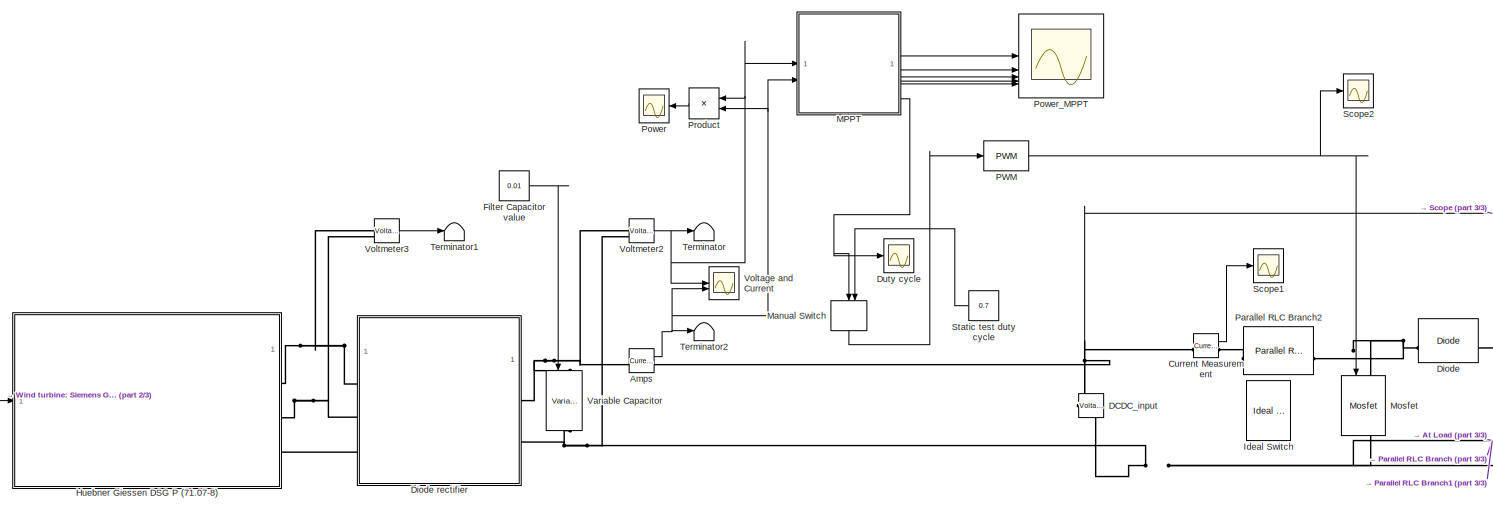
[diagram: root canvas - part 1/3, center side, full height]
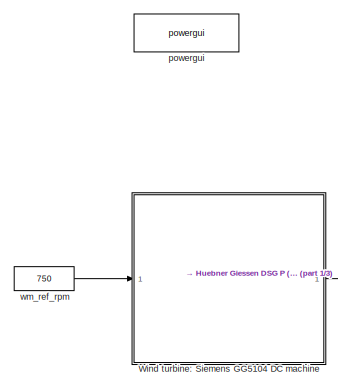
[diagram: root canvas - part 2/3, middle left region]
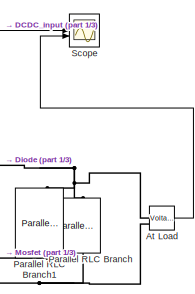
[diagram: root canvas - part 3/3, middle right region]
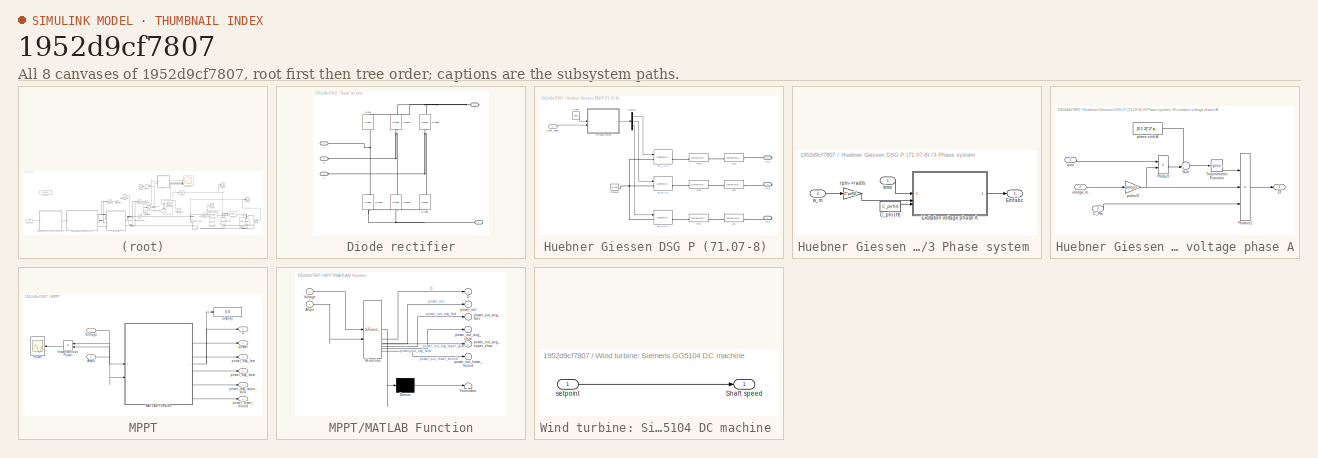
[diagram: thumbnail index - all 8 canvases of the model, root first then tree order]
MODEL slx_1952d9cf7807
KIND model
CONFIG AbsTol = auto
CONFIG EnableMultiTasking = off
CONFIG FixedStep = 1e-7
CONFIG MaxStep = 1e-6
CONFIG MinStep = auto
CONFIG RelTol = 1e-6
CONFIG SampleTimeConstraint = Unconstrained
CONFIG SolverName = ode45
CONFIG StartTime = 0.0
CONFIG StopTime = 10
WORKSPACE source: mxarray member
WORKSPACE C = 0.00044
WORKSPACE L = 0.00025
WORKSPACE R_load = 10
WORKSPACE Rs = 0.42
BLOCK [Reference] Amps  REF=spsCurrentMeasurementLib/Current Measurement
  LibrarySourceBlock = sps_lib/Sensors and Measurements/Current Measurement
  SourceBlock = spsCurrentMeasurementLib/Current Measurement
  SourceType = Current Measurement
  UserDataPersistent = on
BLOCK [Reference] At Load  REF=spsVoltageMeasurementLib/Voltage Measurement
  LibrarySourceBlock = sps_lib/Sensors and Measurements/Voltage Measurement
  SourceBlock = spsVoltageMeasurementLib/Voltage Measurement
  SourceType = Voltage Measurement
  UserDataPersistent = on
BLOCK [Reference] Current Measurement  REF=spsCurrentMeasurementLib/Current Measurement
  LibrarySourceBlock = sps_lib/Sensors and Measurements/Current Measurement
  SourceBlock = spsCurrentMeasurementLib/Current Measurement
  SourceType = Current Measurement
  UserDataPersistent = on
BLOCK [Reference] DCDC_input  REF=spsVoltageMeasurementLib/Voltage Measurement
  LibrarySourceBlock = sps_lib/Sensors and Measurements/Voltage Measurement
  NameLocation = top
  SourceBlock = spsVoltageMeasurementLib/Voltage Measurement
  SourceType = Voltage Measurement
  UserDataPersistent = on
BLOCK [Reference] Diode  REF=spsDiodeLib/Diode
  LibrarySourceBlock = sps_lib/Power Electronics/Diode
  SourceBlock = spsDiodeLib/Diode
  SourceType = Diode
BLOCK [SubSystem] Diode rectifier
BLOCK [PMIOPort] Diode rectifier/+
  NameLocation = top
  Port = 2
  Side = Right
BLOCK [PMIOPort] Diode rectifier/-
  NameLocation = top
  Port = 4
  Side = Right
BLOCK [PMIOPort] Diode rectifier/A
  Side = Left
BLOCK [PMIOPort] Diode rectifier/B
  Port = 3
  Side = Left
BLOCK [PMIOPort] Diode rectifier/C
  Port = 5
  Side = Left
BLOCK [Reference] Diode rectifier/Diode  REF=spsDiodeLib/Diode
  LibrarySourceBlock = sps_lib/Power Electronics/Diode
  NameLocation = right
  SourceBlock = spsDiodeLib/Diode
  SourceType = Diode
BLOCK [Reference] Diode rectifier/Diode1  REF=spsDiodeLib/Diode
  LibrarySourceBlock = sps_lib/Power Electronics/Diode
  NameLocation = right
  SourceBlock = spsDiodeLib/Diode
  SourceType = Diode
BLOCK [Reference] Diode rectifier/Diode2  REF=spsDiodeLib/Diode
  LibrarySourceBlock = sps_lib/Power Electronics/Diode
  NameLocation = right
  SourceBlock = spsDiodeLib/Diode
  SourceType = Diode
BLOCK [Reference] Diode rectifier/Diode3  REF=spsDiodeLib/Diode
  LibrarySourceBlock = sps_lib/Power Electronics/Diode
  NameLocation = right
  SourceBlock = spsDiodeLib/Diode
  SourceType = Diode
BLOCK [Reference] Diode rectifier/Diode4  REF=spsDiodeLib/Diode
  LibrarySourceBlock = sps_lib/Power Electronics/Diode
  NameLocation = right
  SourceBlock = spsDiodeLib/Diode
  SourceType = Diode
BLOCK [Reference] Diode rectifier/Diode5  REF=spsDiodeLib/Diode
  LibrarySourceBlock = sps_lib/Power Electronics/Diode
  NameLocation = right
  SourceBlock = spsDiodeLib/Diode
  SourceType = Diode
BLOCK [Scope] Duty cycle
  Floating = off
  NumInputPorts = 1
  ScopeSpecificationString = Simulink.scopes.TimeScopeBlockCfg('CurrentConfiguration', extmgr.ConfigurationSet(extmgr.Configuration('Core','General UI',true),extmgr.Configuration('Core','Source UI',true),extmgr.Configuration('Sources','WiredSimulink',true,'DataLoggingVariableName','ScopeData1'),extmgr.Configuration('Visuals','Time Domain',true,'SerializedDisplays',{struct('MinYLimReal','0','MaxYLimReal','1','YLabelReal','','M...<+1410ch>
BLOCK [Constant] Filter Capacitor value
  Value = 0.01
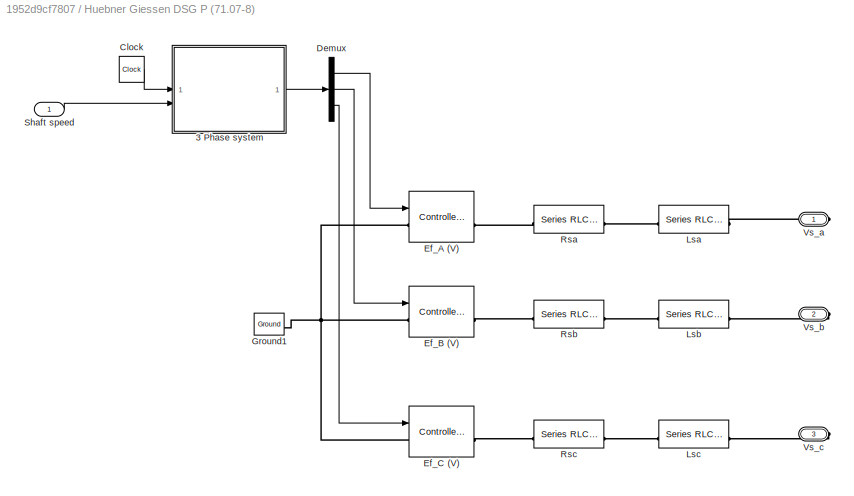
BLOCK [SubSystem] Huebner Giessen DSG P (71.07-8) 
BLOCK [SubSystem] Huebner Giessen DSG P (71.07-8) /3 Phase system 
BLOCK [Constant] Huebner Giessen DSG P (71.07-8) /3 Phase system /C_phi (H)
  Value = C_phi*0.8
  VectorParams1D = off
BLOCK [Outport] Huebner Giessen DSG P (71.07-8) /3 Phase system /Emf abc 
BLOCK [SubSystem] Huebner Giessen DSG P (71.07-8) /3 Phase system /Excitation voltage phase A
BLOCK [Inport] Huebner Giessen DSG P (71.07-8) /3 Phase system /Excitation voltage phase A/C_Phi
  Port = 3
BLOCK [Outport] Huebner Giessen DSG P (71.07-8) /3 Phase system /Excitation voltage phase A/Ef
BLOCK [Product] Huebner Giessen DSG P (71.07-8) /3 Phase system /Excitation voltage phase A/Product
  RndMeth = Zero
BLOCK [Product] Huebner Giessen DSG P (71.07-8) /3 Phase system /Excitation voltage phase A/Product1
  Inputs = 3
  RndMeth = Zero
BLOCK [Sum] Huebner Giessen DSG P (71.07-8) /3 Phase system /Excitation voltage phase A/Sum
  Inputs = ++|
BLOCK [Trigonometry] Huebner Giessen DSG P (71.07-8) /3 Phase system /Excitation voltage phase A/Trigonometric Function
BLOCK [Inport] Huebner Giessen DSG P (71.07-8) /3 Phase system /Excitation voltage phase A/omega_m
  Port = 2
BLOCK [Constant] Huebner Giessen DSG P (71.07-8) /3 Phase system /Excitation voltage phase A/phase shift A
  Value = [0 1 2]*2*pi/3
BLOCK [Gain] Huebner Giessen DSG P (71.07-8) /3 Phase system /Excitation voltage phase A/poles//2
  Gain = poles/2
BLOCK [Inport] Huebner Giessen DSG P (71.07-8) /3 Phase system /Excitation voltage phase A/time
BLOCK [Gain] Huebner Giessen DSG P (71.07-8) /3 Phase system /rpm->rad//s
  Gain = 2*pi/60
BLOCK [Inport] Huebner Giessen DSG P (71.07-8) /3 Phase system /time
BLOCK [Inport] Huebner Giessen DSG P (71.07-8) /3 Phase system /w_m
  Port = 2
BLOCK [Clock] Huebner Giessen DSG P (71.07-8) /Clock
BLOCK [Demux] Huebner Giessen DSG P (71.07-8) /Demux
  Outputs = 3
BLOCK [Reference] Huebner Giessen DSG P (71.07-8) /Ef_A (V)  REF=spsControlledVoltageSourceLib/Controlled Voltage Source
  LibrarySourceBlock = sps_lib/Sources/Controlled Voltage Source
  SourceBlock = spsControlledVoltageSourceLib/Controlled Voltage Source
  SourceType = Controlled Voltage Source
BLOCK [Reference] Huebner Giessen DSG P (71.07-8) /Ef_B (V)  REF=spsControlledVoltageSourceLib/Controlled Voltage Source
  LibrarySourceBlock = sps_lib/Sources/Controlled Voltage Source
  SourceBlock = spsControlledVoltageSourceLib/Controlled Voltage Source
  SourceType = Controlled Voltage Source
BLOCK [Reference] Huebner Giessen DSG P (71.07-8) /Ef_C (V)  REF=spsControlledVoltageSourceLib/Controlled Voltage Source
  LibrarySourceBlock = sps_lib/Sources/Controlled Voltage Source
  SourceBlock = spsControlledVoltageSourceLib/Controlled Voltage Source
  SourceType = Controlled Voltage Source
BLOCK [Reference] Huebner Giessen DSG P (71.07-8) /Ground1  REF=spsGroundLib/Ground
  LibrarySourceBlock = sps_lib/Utilities/Ground
  SourceBlock = spsGroundLib/Ground
  SourceType = Ground
BLOCK [Reference] Huebner Giessen DSG P (71.07-8) /Lsa  REF=spsSeriesRLCBranchLib/Series RLC Branch
  LibrarySourceBlock = sps_lib/Passives/Series RLC Branch
  SourceBlock = spsSeriesRLCBranchLib/Series RLC Branch
  SourceType = Series RLC Branch
BLOCK [Reference] Huebner Giessen DSG P (71.07-8) /Lsb  REF=spsSeriesRLCBranchLib/Series RLC Branch
  LibrarySourceBlock = sps_lib/Passives/Series RLC Branch
  SourceBlock = spsSeriesRLCBranchLib/Series RLC Branch
  SourceType = Series RLC Branch
BLOCK [Reference] Huebner Giessen DSG P (71.07-8) /Lsc  REF=spsSeriesRLCBranchLib/Series RLC Branch
  LibrarySourceBlock = sps_lib/Passives/Series RLC Branch
  SourceBlock = spsSeriesRLCBranchLib/Series RLC Branch
  SourceType = Series RLC Branch
BLOCK [Reference] Huebner Giessen DSG P (71.07-8) /Rsa  REF=spsSeriesRLCBranchLib/Series RLC Branch
  LibrarySourceBlock = sps_lib/Passives/Series RLC Branch
  SourceBlock = spsSeriesRLCBranchLib/Series RLC Branch
  SourceType = Series RLC Branch
BLOCK [Reference] Huebner Giessen DSG P (71.07-8) /Rsb  REF=spsSeriesRLCBranchLib/Series RLC Branch
  LibrarySourceBlock = sps_lib/Passives/Series RLC Branch
  SourceBlock = spsSeriesRLCBranchLib/Series RLC Branch
  SourceType = Series RLC Branch
BLOCK [Reference] Huebner Giessen DSG P (71.07-8) /Rsc  REF=spsSeriesRLCBranchLib/Series RLC Branch
  LibrarySourceBlock = sps_lib/Passives/Series RLC Branch
  SourceBlock = spsSeriesRLCBranchLib/Series RLC Branch
  SourceType = Series RLC Branch
BLOCK [Inport] Huebner Giessen DSG P (71.07-8) /Shaft speed
BLOCK [PMIOPort] Huebner Giessen DSG P (71.07-8) /Vs_a
  Side = Right
BLOCK [PMIOPort] Huebner Giessen DSG P (71.07-8) /Vs_b
  Port = 2
  Side = Right
BLOCK [PMIOPort] Huebner Giessen DSG P (71.07-8) /Vs_c
  Port = 3
  Side = Right
BLOCK [Reference] Ideal Switch  REF=spsIdealSwitchLib/Ideal Switch
  LibrarySourceBlock = sps_lib/Power Electronics/Ideal Switch
  NameLocation = left
  SourceBlock = spsIdealSwitchLib/Ideal Switch
  SourceType = Ideal Switch
BLOCK [SubSystem] MPPT
BLOCK [Inport] MPPT/Amps
  Port = 2
BLOCK [Outport] MPPT/D
  Port = 6
BLOCK [Display] MPPT/Display
  Decimation = 1
BLOCK [Product] MPPT/Instantanious Power
  NameLocation = top
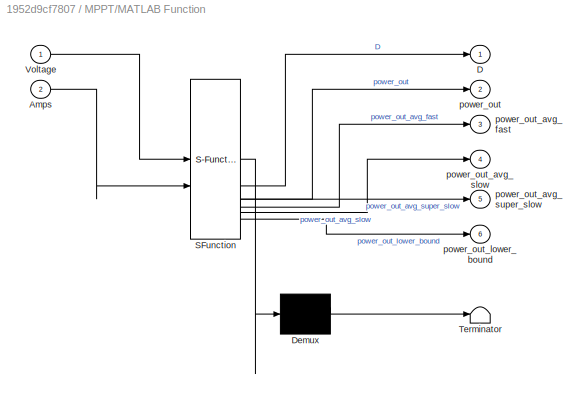
BLOCK [SubSystem] MPPT/MATLAB Function
  ErrorFcn = Stateflow.Translate.translate
  LibrarySourceBlock = simulink/User-Defined\nFunctions/MATLAB Function
  PermitHierarchicalResolution = ExplicitOnly
  SFBlockType = MATLAB Function
  SystemSampleTime = 0.0002
  TreatAsAtomicUnit = on
BLOCK [Demux] MPPT/MATLAB Function/ Demux 
  Outputs = 1
BLOCK [S-Function] MPPT/MATLAB Function/ SFunction 
  EnableBusSupport = on
  FunctionName = sf_sfun
  PortCounts = [2 7]
  SFcnIsStateOwnerBlock = off
  SFunctionDeploymentMode = off
  Tag = Stateflow S-Function 2
BLOCK [Terminator] MPPT/MATLAB Function/ Terminator 
BLOCK [Inport] MPPT/MATLAB Function/Amps
  Port = 2
BLOCK [Outport] MPPT/MATLAB Function/D
BLOCK [Inport] MPPT/MATLAB Function/Voltage
BLOCK [Outport] MPPT/MATLAB Function/power_out
  Port = 2
BLOCK [Outport] MPPT/MATLAB Function/power_out_avg_fast
  Port = 3
BLOCK [Outport] MPPT/MATLAB Function/power_out_avg_slow
  Port = 4
BLOCK [Outport] MPPT/MATLAB Function/power_out_avg_super_slow
  Port = 5
BLOCK [Outport] MPPT/MATLAB Function/power_out_lower_bound
  Port = 6
BLOCK [Scope] MPPT/Power
  Floating = off
  NameLocation = top
  NumInputPorts = 1
  ScopeSpecificationString = Simulink.scopes.TimeScopeBlockCfg('CurrentConfiguration', extmgr.ConfigurationSet(extmgr.Configuration('Core','General UI',true),extmgr.Configuration('Core','Source UI',true),extmgr.Configuration('Sources','WiredSimulink',true,'DataLoggingVariableName','ScopeData1'),extmgr.Configuration('Visuals','Time Domain',true,'SerializedDisplays',{struct('MinYLimReal','-52.45852','MaxYLimReal','472.12667','Y...<+1462ch>
BLOCK [Inport] MPPT/Voltage
BLOCK [Outport] MPPT/power
BLOCK [Outport] MPPT/power_avg_fast
  Port = 2
BLOCK [Outport] MPPT/power_avg_slow
  Port = 3
BLOCK [Outport] MPPT/power_avg_super_slow
  Port = 4
BLOCK [Outport] MPPT/power_lower_bound
  Port = 5
BLOCK [ManualSwitch] Manual Switch
  NameLocation = left
BLOCK [Reference] Mosfet  REF=spsMosfetLib/Mosfet
  LibrarySourceBlock = sps_lib/Power Electronics/Mosfet
  NameLocation = left
  SourceBlock = spsMosfetLib/Mosfet
  SourceType = Mosfet
BLOCK [Reference] PWM  REF=simulink/Discontinuities/PWM
  DisableCoverage = on
  SourceBlock = simulink/Discontinuities/PWM
  SourceType = PWM
BLOCK [Reference] Parallel RLC Branch  REF=spsParallelRLCBranchLib/Parallel RLC Branch
  AttributesFormatString = \n
  LibrarySourceBlock = sps_lib/Passives/Parallel RLC Branch
  NameLocation = left
  SourceBlock = spsParallelRLCBranchLib/Parallel RLC Branch
  SourceType = Parallel RLC Branch
BLOCK [Reference] Parallel RLC Branch1  REF=spsParallelRLCBranchLib/Parallel RLC Branch
  AttributesFormatString = \n
  LibrarySourceBlock = sps_lib/Passives/Parallel RLC Branch
  NameLocation = left
  SourceBlock = spsParallelRLCBranchLib/Parallel RLC Branch
  SourceType = Parallel RLC Branch
BLOCK [Reference] Parallel RLC Branch2  REF=spsParallelRLCBranchLib/Parallel RLC Branch
  AttributesFormatString = \n
  LibrarySourceBlock = sps_lib/Passives/Parallel RLC Branch
  SourceBlock = spsParallelRLCBranchLib/Parallel RLC Branch
  SourceType = Parallel RLC Branch
BLOCK [Scope] Power
  Floating = off
  NameLocation = top
  NumInputPorts = 1
  ScopeSpecificationString = Simulink.scopes.TimeScopeBlockCfg('CurrentConfiguration', extmgr.ConfigurationSet(extmgr.Configuration('Core','General UI',true),extmgr.Configuration('Core','Source UI',true),extmgr.Configuration('Sources','WiredSimulink',true,'DataLoggingVariableName','ScopeData2'),extmgr.Configuration('Visuals','Time Domain',true,'SerializedDisplays',{struct('MinYLimReal','-3.59637','MaxYLimReal','400','YLabelRe...<+1434ch>
BLOCK [Scope] Power_MPPT
  Floating = off
  NumInputPorts = 5
  ScopeSpecificationString = Simulink.scopes.TimeScopeBlockCfg('CurrentConfiguration', extmgr.ConfigurationSet(extmgr.Configuration('Core','General UI',true),extmgr.Configuration('Core','Source UI',true),extmgr.Configuration('Sources','WiredSimulink',true,'DataLoggingVariableName','ScopeData1'),extmgr.Configuration('Visuals','Time Domain',true,'SerializedDisplays',{struct('MinYLimReal','0','MaxYLimReal','400','YLabelReal','',...<+1543ch>
BLOCK [Product] Product
  NameLocation = top
BLOCK [Scope] Scope
  Floating = off
  NumInputPorts = 2
  ScopeSpecificationString = Simulink.scopes.TimeScopeBlockCfg('CurrentConfiguration', extmgr.ConfigurationSet(extmgr.Configuration('Core','General UI',true),extmgr.Configuration('Core','Source UI',true),extmgr.Configuration('Sources','WiredSimulink',true,'DataLoggingVariableName','ScopeData4'),extmgr.Configuration('Visuals','Time Domain',true,'SerializedDisplays',{struct('MinYLimReal','2.36512','MaxYLimReal','17.66164','YLab...<+1424ch>
BLOCK [Scope] Scope1
  Floating = off
  NumInputPorts = 1
  ScopeSpecificationString = Simulink.scopes.TimeScopeBlockCfg('CurrentConfiguration', extmgr.ConfigurationSet(extmgr.Configuration('Core','General UI',true),extmgr.Configuration('Core','Source UI',true),extmgr.Configuration('Sources','WiredSimulink',true,'DataLoggingVariableName','ScopeData5'),extmgr.Configuration('Visuals','Time Domain',true,'SerializedDisplays',{struct('MinYLimReal','0','MaxYLimReal','100','YLabelReal','',...<+1430ch>
BLOCK [Scope] Scope2
  Floating = off
  NumInputPorts = 1
  ScopeSpecificationString = Simulink.scopes.TimeScopeBlockCfg('CurrentConfiguration', extmgr.ConfigurationSet(extmgr.Configuration('Core','General UI',true),extmgr.Configuration('Core','Source UI',true),extmgr.Configuration('Sources','WiredSimulink',true,'DataLoggingVariableName','ScopeData6'),extmgr.Configuration('Visuals','Time Domain',true,'SerializedDisplays',{struct('MinYLimReal','-0.00623','MaxYLimReal','1.00547','YLab...<+1407ch>
BLOCK [Constant] Static test duty cycle
  Value = 0.7
BLOCK [Terminator] Terminator
BLOCK [Terminator] Terminator1
BLOCK [Terminator] Terminator2
BLOCK [Reference] Variable Capacitor  REF=spsVariableCapacitorLib/Variable Capacitor
  LibrarySourceBlock = sps_lib/Passives/Variable Capacitor
  NameLocation = left
  SourceBlock = spsVariableCapacitorLib/Variable Capacitor
  SourceType = Variable Capacitor
BLOCK [Scope] Voltage and Current
  Floating = off
  NumInputPorts = 2
  ScopeSpecificationString = Simulink.scopes.TimeScopeBlockCfg('CurrentConfiguration', extmgr.ConfigurationSet(extmgr.Configuration('Core','General UI',true),extmgr.Configuration('Core','Source UI',true),extmgr.Configuration('Sources','WiredSimulink',true,'DataLoggingVariableName','ScopeData3'),extmgr.Configuration('Visuals','Time Domain',true,'SerializedDisplays',{struct('MinYLimReal','-4.84101','MaxYLimReal','80','YLabelRea...<+1440ch>
BLOCK [Reference] Voltmeter2  REF=spsVoltageMeasurementLib/Voltage Measurement
  LibrarySourceBlock = sps_lib/Sensors and Measurements/Voltage Measurement
  SourceBlock = spsVoltageMeasurementLib/Voltage Measurement
  SourceType = Voltage Measurement
  UserDataPersistent = on
BLOCK [Reference] Voltmeter3  REF=spsVoltageMeasurementLib/Voltage Measurement
  LibrarySourceBlock = sps_lib/Sensors and Measurements/Voltage Measurement
  SourceBlock = spsVoltageMeasurementLib/Voltage Measurement
  SourceType = Voltage Measurement
  UserDataPersistent = on
BLOCK [SubSystem] Wind turbine: Siemens GG5104 DC machine 
BLOCK [Outport] Wind turbine: Siemens GG5104 DC machine /Shaft speed
BLOCK [Inport] Wind turbine: Siemens GG5104 DC machine /setpoint
BLOCK [Reference] powergui  REF=spspowerguiLib/powergui
  Priority = 1
  SourceBlock = spspowerguiLib/powergui
  SourceType = PSB option menu block
BLOCK [Constant] wm_ref_rpm
  Value = 750
NET Amps:1 -> MPPT:2, Product:2, Terminator2:1, Voltage and Current:2
LINE At Load:1 -> Scope:2
LINE Current Measurement:1 -> Scope1:1
LINE DCDC_input:1 -> Scope:1
LINE Filter Capacitor value:1 -> Variable Capacitor:1
LINE Huebner Giessen DSG P (71.07-8) /3 Phase system /C_phi (H):1 -> Huebner Giessen DSG P (71.07-8) /3 Phase system /Excitation voltage phase A:3
LINE Huebner Giessen DSG P (71.07-8) /3 Phase system /Excitation voltage phase A/C_Phi:1 -> Huebner Giessen DSG P (71.07-8) /3 Phase system /Excitation voltage phase A/Product1:3
LINE Huebner Giessen DSG P (71.07-8) /3 Phase system /Excitation voltage phase A/Product1:1 -> Huebner Giessen DSG P (71.07-8) /3 Phase system /Excitation voltage phase A/Ef:1
LINE Huebner Giessen DSG P (71.07-8) /3 Phase system /Excitation voltage phase A/Product:1 -> Huebner Giessen DSG P (71.07-8) /3 Phase system /Excitation voltage phase A/Sum:2
LINE Huebner Giessen DSG P (71.07-8) /3 Phase system /Excitation voltage phase A/Sum:1 -> Huebner Giessen DSG P (71.07-8) /3 Phase system /Excitation voltage phase A/Trigonometric Function:1
LINE Huebner Giessen DSG P (71.07-8) /3 Phase system /Excitation voltage phase A/Trigonometric Function:1 -> Huebner Giessen DSG P (71.07-8) /3 Phase system /Excitation voltage phase A/Product1:1
LINE Huebner Giessen DSG P (71.07-8) /3 Phase system /Excitation voltage phase A/omega_m:1 -> Huebner Giessen DSG P (71.07-8) /3 Phase system /Excitation voltage phase A/poles//2:1
LINE Huebner Giessen DSG P (71.07-8) /3 Phase system /Excitation voltage phase A/phase shift A:1 -> Huebner Giessen DSG P (71.07-8) /3 Phase system /Excitation voltage phase A/Sum:1
NET Huebner Giessen DSG P (71.07-8) /3 Phase system /Excitation voltage phase A/poles//2:1 -> Huebner Giessen DSG P (71.07-8) /3 Phase system /Excitation voltage phase A/Product1:2, Huebner Giessen DSG P (71.07-8) /3 Phase system /Excitation voltage phase A/Product:2
LINE Huebner Giessen DSG P (71.07-8) /3 Phase system /Excitation voltage phase A/time:1 -> Huebner Giessen DSG P (71.07-8) /3 Phase system /Excitation voltage phase A/Product:1
LINE Huebner Giessen DSG P (71.07-8) /3 Phase system /Excitation voltage phase A:1 -> Huebner Giessen DSG P (71.07-8) /3 Phase system /Emf abc :1
LINE Huebner Giessen DSG P (71.07-8) /3 Phase system /rpm->rad//s:1 -> Huebner Giessen DSG P (71.07-8) /3 Phase system /Excitation voltage phase A:2
LINE Huebner Giessen DSG P (71.07-8) /3 Phase system /time:1 -> Huebner Giessen DSG P (71.07-8) /3 Phase system /Excitation voltage phase A:1
LINE Huebner Giessen DSG P (71.07-8) /3 Phase system /w_m:1 -> Huebner Giessen DSG P (71.07-8) /3 Phase system /rpm->rad//s:1
LINE Huebner Giessen DSG P (71.07-8) /3 Phase system :1 -> Huebner Giessen DSG P (71.07-8) /Demux:1
LINE Huebner Giessen DSG P (71.07-8) /Clock:1 -> Huebner Giessen DSG P (71.07-8) /3 Phase system :1
LINE Huebner Giessen DSG P (71.07-8) /Demux:1 -> Huebner Giessen DSG P (71.07-8) /Ef_A (V):1
LINE Huebner Giessen DSG P (71.07-8) /Demux:2 -> Huebner Giessen DSG P (71.07-8) /Ef_B (V):1
LINE Huebner Giessen DSG P (71.07-8) /Demux:3 -> Huebner Giessen DSG P (71.07-8) /Ef_C (V):1
LINE Huebner Giessen DSG P (71.07-8) /Shaft speed:1 -> Huebner Giessen DSG P (71.07-8) /3 Phase system :2
NET MPPT/Amps:1 -> MPPT/Instantanious Power:2, MPPT/MATLAB Function:2
LINE MPPT/Instantanious Power:1 -> MPPT/Power:1
NET MPPT/MATLAB Function:1 -> MPPT/D:1, MPPT/Display:1
LINE MPPT/MATLAB Function:2 -> MPPT/power:1
LINE MPPT/MATLAB Function:3 -> MPPT/power_avg_fast:1
LINE MPPT/MATLAB Function:4 -> MPPT/power_avg_slow:1
LINE MPPT/MATLAB Function:5 -> MPPT/power_avg_super_slow:1
LINE MPPT/MATLAB Function:6 -> MPPT/power_lower_bound:1
NET MPPT/Voltage:1 -> MPPT/Instantanious Power:1, MPPT/MATLAB Function:1
LINE MPPT:1 -> Power_MPPT:1
LINE MPPT:2 -> Power_MPPT:2
LINE MPPT:3 -> Power_MPPT:3
LINE MPPT:4 -> Power_MPPT:4
LINE MPPT:5 -> Power_MPPT:5
NET MPPT:6 -> Duty cycle:1, Manual Switch:1
LINE Manual Switch:1 -> PWM:1
NET PWM:1 -> Mosfet:1, Scope2:1
LINE Product:1 -> Power:1
LINE Static test duty cycle:1 -> Manual Switch:2
NET Voltmeter2:1 -> MPPT:1, Product:1, Terminator:1, Voltage and Current:1
LINE Voltmeter3:1 -> Terminator1:1
LINE Wind turbine: Siemens GG5104 DC machine /setpoint:1 -> Wind turbine: Siemens GG5104 DC machine /Shaft speed:1
LINE Wind turbine: Siemens GG5104 DC machine :1 -> Huebner Giessen DSG P (71.07-8) :1
LINE wm_ref_rpm:1 -> Wind turbine: Siemens GG5104 DC machine :1
PNET net1: Amps:LConn1 -- Diode rectifier:RConn1 -- Variable Capacitor:LConn1 -- Voltmeter2:LConn1
PNET net2: Amps:RConn1 -- Current Measurement:LConn1 -- DCDC_input:LConn1
PNET net3: At Load:LConn1 -- Diode:RConn1 -- Parallel RLC Branch1:LConn1 -- Parallel RLC Branch:LConn1
PNET net4: At Load:LConn2 -- DCDC_input:LConn2 -- Diode rectifier:RConn2 -- Mosfet:RConn1 -- Parallel RLC Branch1:RConn1 -- Parallel RLC Branch:RConn1 -- Variable Capacitor:RConn1 -- Voltmeter2:LConn2
PLINE Current Measurement:RConn1 -- Parallel RLC Branch2:LConn1
PNET net5: Diode rectifier/+:RConn1 -- Diode rectifier/Diode1:RConn1 -- Diode rectifier/Diode2:RConn1 -- Diode rectifier/Diode:RConn1
PNET net6: Diode rectifier/-:RConn1 -- Diode rectifier/Diode3:LConn1 -- Diode rectifier/Diode4:LConn1 -- Diode rectifier/Diode5:LConn1
PNET net7: Diode rectifier/A:RConn1 -- Diode rectifier/Diode3:RConn1 -- Diode rectifier/Diode:LConn1
PNET net8: Diode rectifier/B:RConn1 -- Diode rectifier/Diode1:LConn1 -- Diode rectifier/Diode4:RConn1
PNET net9: Diode rectifier/C:RConn1 -- Diode rectifier/Diode2:LConn1 -- Diode rectifier/Diode5:RConn1
PNET net10: Diode rectifier:LConn1 -- Huebner Giessen DSG P (71.07-8) :RConn1 -- Voltmeter3:LConn1
PNET net11: Diode rectifier:LConn2 -- Huebner Giessen DSG P (71.07-8) :RConn2 -- Voltmeter3:LConn2
PLINE Diode rectifier:LConn3 -- Huebner Giessen DSG P (71.07-8) :RConn3
PNET net12: Diode:LConn1 -- Mosfet:LConn1 -- Parallel RLC Branch2:RConn1
PNET net13: Huebner Giessen DSG P (71.07-8) /Ef_A (V):LConn1 -- Huebner Giessen DSG P (71.07-8) /Ef_B (V):LConn1 -- Huebner Giessen DSG P (71.07-8) /Ef_C (V):LConn1 -- Huebner Giessen DSG P (71.07-8) /Ground1:LConn1
PLINE Huebner Giessen DSG P (71.07-8) /Ef_A (V):RConn1 -- Huebner Giessen DSG P (71.07-8) /Rsa:LConn1
PLINE Huebner Giessen DSG P (71.07-8) /Ef_B (V):RConn1 -- Huebner Giessen DSG P (71.07-8) /Rsb:LConn1
PLINE Huebner Giessen DSG P (71.07-8) /Ef_C (V):RConn1 -- Huebner Giessen DSG P (71.07-8) /Rsc:LConn1
PLINE Huebner Giessen DSG P (71.07-8) /Lsa:LConn1 -- Huebner Giessen DSG P (71.07-8) /Rsa:RConn1
PLINE Huebner Giessen DSG P (71.07-8) /Lsa:RConn1 -- Huebner Giessen DSG P (71.07-8) /Vs_a:RConn1
PLINE Huebner Giessen DSG P (71.07-8) /Lsb:LConn1 -- Huebner Giessen DSG P (71.07-8) /Rsb:RConn1
PLINE Huebner Giessen DSG P (71.07-8) /Lsb:RConn1 -- Huebner Giessen DSG P (71.07-8) /Vs_b:RConn1
PLINE Huebner Giessen DSG P (71.07-8) /Lsc:LConn1 -- Huebner Giessen DSG P (71.07-8) /Rsc:RConn1
PLINE Huebner Giessen DSG P (71.07-8) /Lsc:RConn1 -- Huebner Giessen DSG P (71.07-8) /Vs_c:RConn1
note: NET lines group one-source signal fan-out (src -> all destinations, sorted); 1:1 wires keep LINE; PNET lines group multi-terminal physical nets as a canonical sorted terminal list (undirected conserving connections); 2-terminal nets keep the pairwise PLINE form
CHART MPPT/MATLAB Function states=1 transitions=1
  STATE_LABEL 'eML_blk_kernel()'
  STATE_LABEL 'SCRIPT:\nfunction [D, power_out, power_out_avg_fast, power_out_avg_slow, power_out_avg_super_slow, power_out_lower_bound] = fcn(Voltage, Amps)\n\npersistent timeout D_previous direction_previous fast_power_average super_slow_power_average slow_power_average power_lower_bound slow_power_array super_slow_power_array fast_power_array setfast setslow; %counter power_previous \nstep_size = 0.0005;\nsuper_sl...<+1856ch>'
CHART  states=0 transitions=0
